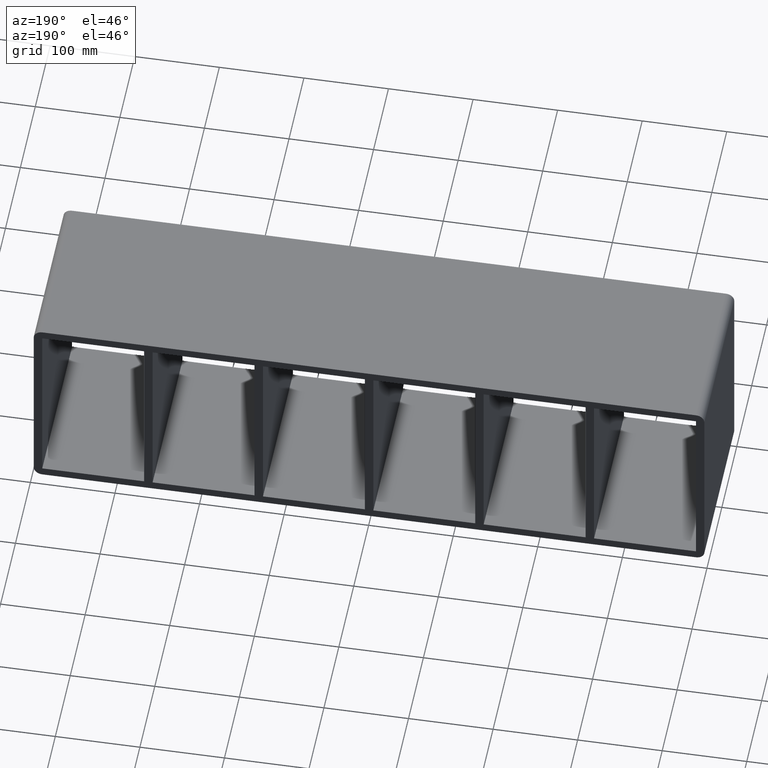
[diagram: clean part render]
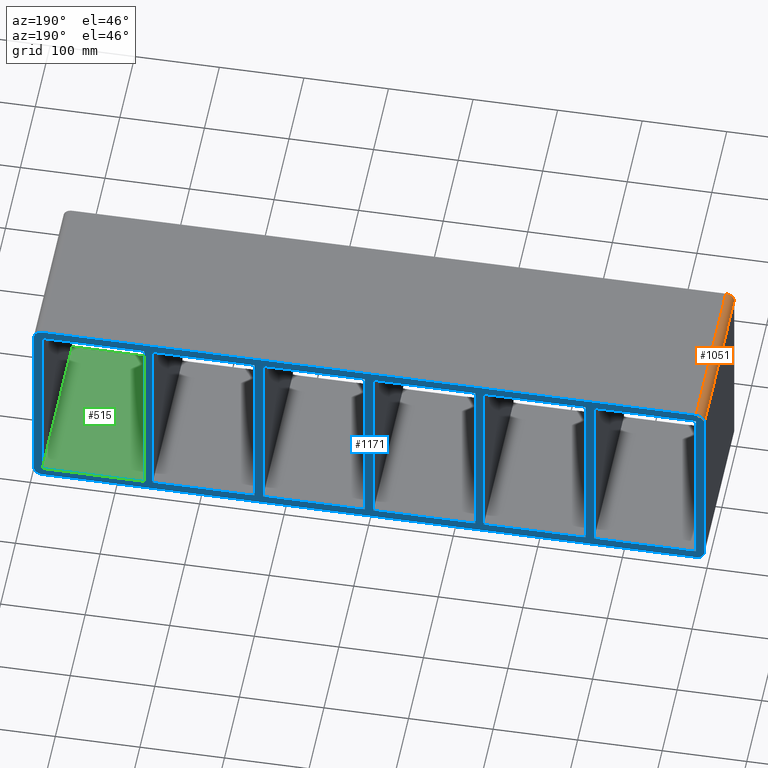
[diagram: same view with three faces highlighted in distinct colors, each labeled with its STEP entity id]
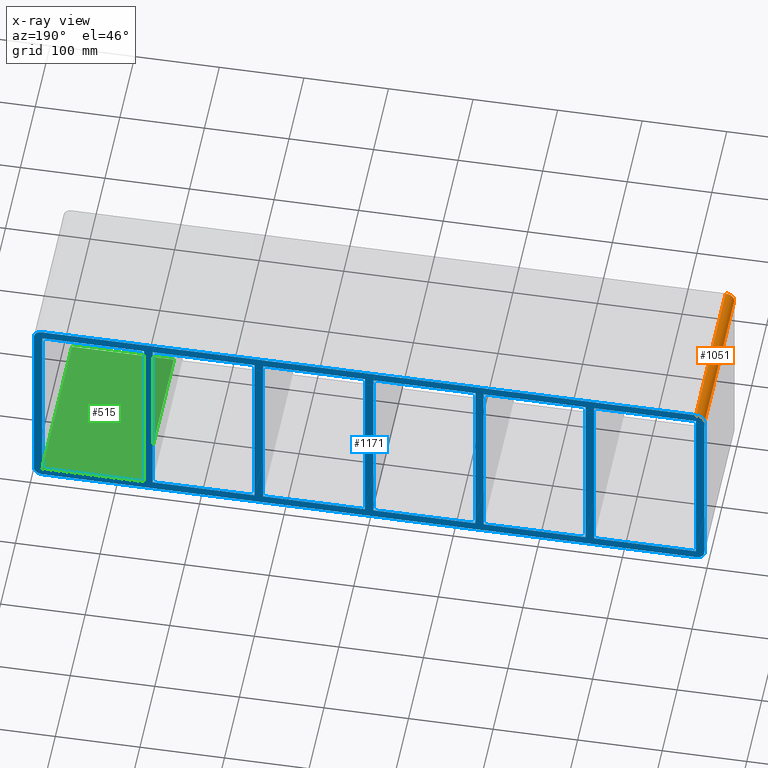
[diagram: x-ray of the same camera — body ghosted, the three highlighted faces saturated]
A machine part, auxiliary view with three faces highlighted in distinct colors.
The next image is the same camera in x-ray (body ghosted, the three faces saturated) — at least one of them is partly hidden behind the body in this view.
Their STEP definitions:

[orange] entity #1051 — the highlighted cylindrical surface (edge-blend (fillet) strip) has radius 10 mm, axis along (0, 1, 0).
#850=CARTESIAN_POINT('',(-386.50000000000006,-3.0,118.99999999999999));
#851=VERTEX_POINT('',#850);
#858=CARTESIAN_POINT('',(-396.50000000000006,-3.0,108.99999999999999));
#859=VERTEX_POINT('',#858);
#860=CARTESIAN_POINT('',(-386.50000000000006,-3.0,108.99999999999999));
#861=DIRECTION('',(0.0,1.0,0.0));
#862=DIRECTION('',(-0.707106781186547,0.0,0.707106781186547));
#863=AXIS2_PLACEMENT_3D('',#860,#861,#862);
#864=CIRCLE('',#863,9.999999999999998);
#865=EDGE_CURVE('',#859,#851,#864,.T.);
#1009=CARTESIAN_POINT('',(-386.50000000000006,197.0,118.99999999999999));
#1010=VERTEX_POINT('',#1009);
#1017=CARTESIAN_POINT('',(-386.50000000000006,-3.0,118.99999999999999));
#1018=DIRECTION('',(0.0,1.0,0.0));
#1019=VECTOR('',#1018,200.0);
#1020=LINE('',#1017,#1019);
#1021=EDGE_CURVE('',#851,#1010,#1020,.T.);
#1027=CARTESIAN_POINT('',(-386.50000000000006,0.0,108.99999999999999));
#1028=DIRECTION('',(0.0,1.0,0.0));
#1029=DIRECTION('',(-0.707106781186547,0.0,0.707106781186547));
#1030=AXIS2_PLACEMENT_3D('',#1027,#1028,#1029);
#1031=CYLINDRICAL_SURFACE('',#1030,10.0);
#1032=CARTESIAN_POINT('',(-396.50000000000006,197.0,108.99999999999999));
#1033=VERTEX_POINT('',#1032);
#1034=CARTESIAN_POINT('',(-386.50000000000006,197.0,108.99999999999999));
#1035=DIRECTION('',(0.0,-1.0,0.0));
#1036=DIRECTION('',(-0.707106781186547,0.0,0.707106781186547));
#1037=AXIS2_PLACEMENT_3D('',#1034,#1035,#1036);
#1038=CIRCLE('',#1037,9.999999999999998);
#1039=EDGE_CURVE('',#1010,#1033,#1038,.T.);
#1040=ORIENTED_EDGE('',*,*,#1039,.T.);
#1041=CARTESIAN_POINT('',(-396.50000000000006,197.0,108.99999999999999));
#1042=DIRECTION('',(0.0,-1.0,0.0));
#1043=VECTOR('',#1042,200.0);
#1044=LINE('',#1041,#1043);
#1045=EDGE_CURVE('',#1033,#859,#1044,.T.);
#1046=ORIENTED_EDGE('',*,*,#1045,.T.);
#1047=ORIENTED_EDGE('',*,*,#865,.T.);
#1048=ORIENTED_EDGE('',*,*,#1021,.T.);
#1049=EDGE_LOOP('',(#1040,#1046,#1047,#1048));
#1050=FACE_OUTER_BOUND('',#1049,.T.);
#1051=ADVANCED_FACE('',(#1050),#1031,.T.);

[blue] entity #1171 — the highlighted planar face has unit normal (0, 1, 0).
#83=CARTESIAN_POINT('',(255.99999999999878,197.0,108.99999999999997));
#84=VERTEX_POINT('',#83);
#91=CARTESIAN_POINT('',(255.99999999999883,197.0,-109.0));
#92=VERTEX_POINT('',#91);
#93=CARTESIAN_POINT('',(255.99999999999883,197.0,-109.0));
#94=DIRECTION('',(0.0,0.0,1.0));
#95=VECTOR('',#94,217.99999999999997);
#96=LINE('',#93,#95);
#97=EDGE_CURVE('',#92,#84,#96,.T.);
#123=CARTESIAN_POINT('',(266.00000000001461,197.0,-108.99999999997137));
#124=VERTEX_POINT('',#123);
#131=CARTESIAN_POINT('',(266.00000000001461,197.0,108.99999999999997));
#132=VERTEX_POINT('',#131);
#133=CARTESIAN_POINT('',(266.00000000001461,197.0,108.99999999999997));
#134=DIRECTION('',(0.0,0.0,-1.0));
#135=VECTOR('',#134,217.99999999997135);
#136=LINE('',#133,#135);
#137=EDGE_CURVE('',#132,#124,#136,.T.);
#163=CARTESIAN_POINT('',(125.49999999999876,197.0,108.99999999999997));
#164=VERTEX_POINT('',#163);
#171=CARTESIAN_POINT('',(125.49999999999883,197.0,-109.0));
#172=VERTEX_POINT('',#171);
#173=CARTESIAN_POINT('',(125.49999999999883,197.0,-109.0));
#174=DIRECTION('',(0.0,0.0,1.0));
#175=VECTOR('',#174,217.99999999999997);
#176=LINE('',#173,#175);
#177=EDGE_CURVE('',#172,#164,#176,.T.);
#203=CARTESIAN_POINT('',(135.50000000001461,197.0,-108.99999999997137));
#204=VERTEX_POINT('',#203);
#211=CARTESIAN_POINT('',(135.50000000001461,197.0,108.99999999999997));
#212=VERTEX_POINT('',#211);
#213=CARTESIAN_POINT('',(135.50000000001461,197.0,108.99999999999997));
#214=DIRECTION('',(0.0,0.0,-1.0));
#215=VECTOR('',#214,217.99999999997135);
#216=LINE('',#213,#215);
#217=EDGE_CURVE('',#212,#204,#216,.T.);
#243=CARTESIAN_POINT('',(-5.000000000001279,197.0,108.99999999999997));
#244=VERTEX_POINT('',#243);
#251=CARTESIAN_POINT('',(-5.000000000001208,197.0,-109.0));
#252=VERTEX_POINT('',#251);
#253=CARTESIAN_POINT('',(-5.000000000001208,197.0,-109.0));
#254=DIRECTION('',(0.0,0.0,1.0));
#255=VECTOR('',#254,217.99999999999997);
#256=LINE('',#253,#255);
#257=EDGE_CURVE('',#252,#244,#256,.T.);
#283=CARTESIAN_POINT('',(5.000000000014566,197.0,-108.99999999997137));
#284=VERTEX_POINT('',#283);
#291=CARTESIAN_POINT('',(5.000000000014566,197.0,108.99999999999997));
#292=VERTEX_POINT('',#291);
#293=CARTESIAN_POINT('',(5.000000000014566,197.0,108.99999999999997));
#294=DIRECTION('',(0.0,0.0,-1.0));
#295=VECTOR('',#294,217.99999999997135);
#296=LINE('',#293,#295);
#297=EDGE_CURVE('',#292,#284,#296,.T.);
#323=CARTESIAN_POINT('',(-135.50000000000128,197.0,108.99999999999997));
#324=VERTEX_POINT('',#323);
#331=CARTESIAN_POINT('',(-135.50000000000122,197.0,-109.0));
#332=VERTEX_POINT('',#331);
#333=CARTESIAN_POINT('',(-135.50000000000122,197.0,-109.0));
#334=DIRECTION('',(0.0,0.0,1.0));
#335=VECTOR('',#334,217.99999999999997);
#336=LINE('',#333,#335);
#337=EDGE_CURVE('',#332,#324,#336,.T.);
#363=CARTESIAN_POINT('',(-125.49999999998545,197.0,-108.99999999997137));
#364=VERTEX_POINT('',#363);
#371=CARTESIAN_POINT('',(-125.49999999998545,197.0,108.99999999999997));
#372=VERTEX_POINT('',#371);
#373=CARTESIAN_POINT('',(-125.49999999998545,197.0,108.99999999999997));
#374=DIRECTION('',(0.0,0.0,-1.0));
#375=VECTOR('',#374,217.99999999997135);
#376=LINE('',#373,#375);
#377=EDGE_CURVE('',#372,#364,#376,.T.);
#394=CARTESIAN_POINT('',(-255.99999999998545,197.0,-108.99999999997137));
#395=VERTEX_POINT('',#394);
#396=CARTESIAN_POINT('',(-255.99999999998542,197.0,-109.0));
#397=DIRECTION('',(1.0,0.0,0.0));
#398=VECTOR('',#397,120.4999999999842);
#399=LINE('',#396,#398);
#400=EDGE_CURVE('',#395,#332,#399,.T.);
#425=CARTESIAN_POINT('',(-125.49999999998542,197.0,-109.0));
#426=DIRECTION('',(1.0,0.0,0.0));
#427=VECTOR('',#426,120.4999999999842);
#428=LINE('',#425,#427);
#429=EDGE_CURVE('',#364,#252,#428,.T.);
#447=CARTESIAN_POINT('',(5.00000000001458,197.0,-109.0));
#448=DIRECTION('',(1.0,0.0,0.0));
#449=VECTOR('',#448,120.49999999998425);
#450=LINE('',#447,#449);
#451=EDGE_CURVE('',#284,#172,#450,.T.);
#469=CARTESIAN_POINT('',(135.50000000001461,197.0,-109.0));
#470=DIRECTION('',(1.0,0.0,0.0));
#471=VECTOR('',#470,120.49999999998423);
#472=LINE('',#469,#471);
#473=EDGE_CURVE('',#204,#92,#472,.T.);
#499=CARTESIAN_POINT('',(386.50000000000006,197.0,-109.0));
#500=VERTEX_POINT('',#499);
#507=CARTESIAN_POINT('',(266.00000000001461,197.0,-109.0));
#508=DIRECTION('',(1.0,0.0,0.0));
#509=VECTOR('',#508,120.49999999998545);
#510=LINE('',#507,#509);
#511=EDGE_CURVE('',#124,#500,#510,.T.);
#530=CARTESIAN_POINT('',(-255.99999999998545,197.0,108.99999999999997));
#531=VERTEX_POINT('',#530);
#538=CARTESIAN_POINT('',(-135.50000000000128,197.0,108.99999999999999));
#539=DIRECTION('',(-1.0,0.0,0.0));
#540=VECTOR('',#539,120.49999999998417);
#541=LINE('',#538,#540);
#542=EDGE_CURVE('',#324,#531,#541,.T.);
#560=CARTESIAN_POINT('',(-5.000000000001279,197.0,108.99999999999999));
#561=DIRECTION('',(-1.0,0.0,0.0));
#562=VECTOR('',#561,120.49999999998417);
#563=LINE('',#560,#562);
#564=EDGE_CURVE('',#244,#372,#563,.T.);
#582=CARTESIAN_POINT('',(125.49999999999878,197.0,108.99999999999999));
#583=DIRECTION('',(-1.0,0.0,0.0));
#584=VECTOR('',#583,120.4999999999842);
#585=LINE('',#582,#584);
#586=EDGE_CURVE('',#164,#292,#585,.T.);
#597=CARTESIAN_POINT('',(386.50000000000006,197.0,108.99999999999997));
#598=VERTEX_POINT('',#597);
#599=CARTESIAN_POINT('',(386.50000000000011,197.0,108.99999999999999));
#600=DIRECTION('',(-1.0,0.0,0.0));
#601=VECTOR('',#600,120.49999999998556);
#602=LINE('',#599,#601);
#603=EDGE_CURVE('',#598,#132,#602,.T.);
#635=CARTESIAN_POINT('',(255.99999999999883,197.0,108.99999999999999));
#636=DIRECTION('',(-1.0,0.0,0.0));
#637=VECTOR('',#636,120.4999999999842);
#638=LINE('',#635,#637);
#639=EDGE_CURVE('',#84,#212,#638,.T.);
#659=CARTESIAN_POINT('',(-266.00000000000131,197.0,108.99999999999997));
#660=VERTEX_POINT('',#659);
#667=CARTESIAN_POINT('',(-266.00000000000125,197.0,-109.0));
#668=VERTEX_POINT('',#667);
#669=CARTESIAN_POINT('',(-266.00000000000125,197.0,-109.0));
#670=DIRECTION('',(0.0,0.0,1.0));
#671=VECTOR('',#670,217.99999999999997);
#672=LINE('',#669,#671);
#673=EDGE_CURVE('',#668,#660,#672,.T.);
#696=CARTESIAN_POINT('',(-255.99999999998545,197.0,108.99999999999997));
#697=DIRECTION('',(0.0,0.0,-1.0));
#698=VECTOR('',#697,217.99999999997135);
#699=LINE('',#696,#698);
#700=EDGE_CURVE('',#531,#395,#699,.T.);
#712=CARTESIAN_POINT('',(-386.50000000000006,197.0,-109.0));
#713=VERTEX_POINT('',#712);
#714=CARTESIAN_POINT('',(-386.50000000000011,197.0,-109.0));
#715=DIRECTION('',(1.0,0.0,0.0));
#716=VECTOR('',#715,120.49999999999886);
#717=LINE('',#714,#716);
#718=EDGE_CURVE('',#713,#668,#717,.T.);
#751=CARTESIAN_POINT('',(-386.50000000000006,197.0,108.99999999999997));
#752=VERTEX_POINT('',#751);
#759=CARTESIAN_POINT('',(-266.00000000000131,197.0,108.99999999999999));
#760=DIRECTION('',(-1.0,0.0,0.0));
#761=VECTOR('',#760,120.49999999999875);
#762=LINE('',#759,#761);
#763=EDGE_CURVE('',#660,#752,#762,.T.);
#773=CARTESIAN_POINT('',(-396.50000000000006,197.0,-109.00000000000003));
#774=VERTEX_POINT('',#773);
#775=CARTESIAN_POINT('',(-386.50000000000006,197.0,-119.00000000000003));
#776=VERTEX_POINT('',#775);
#777=CARTESIAN_POINT('',(-386.50000000000006,197.0,-109.00000000000003));
#778=DIRECTION('',(0.0,-1.0,0.0));
#779=DIRECTION('',(-0.707106781186547,0.0,-0.707106781186547));
#780=AXIS2_PLACEMENT_3D('',#777,#778,#779);
#781=CIRCLE('',#780,9.999999999999998);
#782=EDGE_CURVE('',#774,#776,#781,.T.);
#928=CARTESIAN_POINT('',(386.50000000000006,197.0,-119.00000000000003));
#929=VERTEX_POINT('',#928);
#930=CARTESIAN_POINT('',(386.50000000000006,197.0,-119.00000000000003));
#931=DIRECTION('',(-1.0,0.0,0.0));
#932=VECTOR('',#931,773.00000000000011);
#933=LINE('',#930,#932);
#934=EDGE_CURVE('',#929,#776,#933,.T.);
#951=CARTESIAN_POINT('',(396.50000000000006,197.0,-109.00000000000003));
#952=VERTEX_POINT('',#951);
#953=CARTESIAN_POINT('',(386.50000000000006,197.0,-109.00000000000003));
#954=DIRECTION('',(0.0,-1.0,0.0));
#955=DIRECTION('',(0.707106781186547,0.0,-0.707106781186547));
#956=AXIS2_PLACEMENT_3D('',#953,#954,#955);
#957=CIRCLE('',#956,9.999999999999998);
#958=EDGE_CURVE('',#929,#952,#957,.T.);
#977=CARTESIAN_POINT('',(396.50000000000006,197.0,108.99999999999999));
#978=VERTEX_POINT('',#977);
#985=CARTESIAN_POINT('',(386.50000000000006,197.0,118.99999999999999));
#986=VERTEX_POINT('',#985);
#987=CARTESIAN_POINT('',(386.50000000000006,197.0,108.99999999999999));
#988=DIRECTION('',(0.0,-1.0,0.0));
#989=DIRECTION('',(0.707106781186547,0.0,0.707106781186547));
#990=AXIS2_PLACEMENT_3D('',#987,#988,#989);
#991=CIRCLE('',#990,9.999999999999998);
#992=EDGE_CURVE('',#978,#986,#991,.T.);
#1009=CARTESIAN_POINT('',(-386.50000000000006,197.0,118.99999999999999));
#1010=VERTEX_POINT('',#1009);
#1011=CARTESIAN_POINT('',(-386.50000000000006,197.0,118.99999999999999));
#1012=DIRECTION('',(1.0,0.0,0.0));
#1013=VECTOR('',#1012,773.00000000000011);
#1014=LINE('',#1011,#1013);
#1015=EDGE_CURVE('',#1010,#986,#1014,.T.);
#1032=CARTESIAN_POINT('',(-396.50000000000006,197.0,108.99999999999999));
#1033=VERTEX_POINT('',#1032);
#1034=CARTESIAN_POINT('',(-386.50000000000006,197.0,108.99999999999999));
#1035=DIRECTION('',(0.0,-1.0,0.0));
#1036=DIRECTION('',(-0.707106781186547,0.0,0.707106781186547));
#1037=AXIS2_PLACEMENT_3D('',#1034,#1035,#1036);
#1038=CIRCLE('',#1037,9.999999999999998);
#1039=EDGE_CURVE('',#1010,#1033,#1038,.T.);
#1060=CARTESIAN_POINT('',(386.50000000000006,197.0,-108.99999999999999));
#1061=DIRECTION('',(0.0,0.0,1.0));
#1062=VECTOR('',#1061,217.99999999999994);
#1063=LINE('',#1060,#1062);
#1064=EDGE_CURVE('',#500,#598,#1063,.T.);
#1077=CARTESIAN_POINT('',(-386.50000000000006,197.0,108.99999999999996));
#1078=DIRECTION('',(0.0,0.0,-1.0));
#1079=VECTOR('',#1078,217.99999999999994);
#1080=LINE('',#1077,#1079);
#1081=EDGE_CURVE('',#752,#713,#1080,.T.);
#1094=CARTESIAN_POINT('',(-396.50000000000006,197.0,-109.00000000000003));
#1095=DIRECTION('',(0.0,0.0,1.0));
#1096=VECTOR('',#1095,218.0);
#1097=LINE('',#1094,#1096);
#1098=EDGE_CURVE('',#774,#1033,#1097,.T.);
#1109=CARTESIAN_POINT('',(396.50000000000006,197.0,108.99999999999999));
#1110=DIRECTION('',(0.0,0.0,-1.0));
#1111=VECTOR('',#1110,218.0);
#1112=LINE('',#1109,#1111);
#1113=EDGE_CURVE('',#978,#952,#1112,.T.);
#1120=CARTESIAN_POINT('',(0.0,197.0,-1.654028E-014));
#1121=DIRECTION('',(0.0,1.0,0.0));
#1122=DIRECTION('',(0.0,0.0,1.0));
#1123=AXIS2_PLACEMENT_3D('',#1120,#1121,#1122);
#1124=PLANE('',#1123);
#1125=ORIENTED_EDGE('',*,*,#782,.F.);
#1126=ORIENTED_EDGE('',*,*,#1098,.T.);
#1127=ORIENTED_EDGE('',*,*,#1039,.F.);
#1128=ORIENTED_EDGE('',*,*,#1015,.T.);
#1129=ORIENTED_EDGE('',*,*,#992,.F.);
#1130=ORIENTED_EDGE('',*,*,#1113,.T.);
#1131=ORIENTED_EDGE('',*,*,#958,.F.);
#1132=ORIENTED_EDGE('',*,*,#934,.T.);
#1133=EDGE_LOOP('',(#1125,#1126,#1127,#1128,#1129,#1130,#1131,#1132));
#1134=FACE_OUTER_BOUND('',#1133,.T.);
#1135=ORIENTED_EDGE('',*,*,#511,.T.);
#1136=ORIENTED_EDGE('',*,*,#1064,.T.);
#1137=ORIENTED_EDGE('',*,*,#603,.T.);
#1138=ORIENTED_EDGE('',*,*,#137,.T.);
#1139=EDGE_LOOP('',(#1135,#1136,#1137,#1138));
#1140=FACE_BOUND('',#1139,.T.);
#1141=ORIENTED_EDGE('',*,*,#97,.T.);
#1142=ORIENTED_EDGE('',*,*,#639,.T.);
#1143=ORIENTED_EDGE('',*,*,#217,.T.);
#1144=ORIENTED_EDGE('',*,*,#473,.T.);
#1145=EDGE_LOOP('',(#1141,#1142,#1143,#1144));
#1146=FACE_BOUND('',#1145,.T.);
#1147=ORIENTED_EDGE('',*,*,#177,.T.);
#1148=ORIENTED_EDGE('',*,*,#586,.T.);
#1149=ORIENTED_EDGE('',*,*,#297,.T.);
#1150=ORIENTED_EDGE('',*,*,#451,.T.);
#1151=EDGE_LOOP('',(#1147,#1148,#1149,#1150));
#1152=FACE_BOUND('',#1151,.T.);
#1153=ORIENTED_EDGE('',*,*,#257,.T.);
#1154=ORIENTED_EDGE('',*,*,#564,.T.);
#1155=ORIENTED_EDGE('',*,*,#377,.T.);
#1156=ORIENTED_EDGE('',*,*,#429,.T.);
#1157=EDGE_LOOP('',(#1153,#1154,#1155,#1156));
#1158=FACE_BOUND('',#1157,.T.);
#1159=ORIENTED_EDGE('',*,*,#337,.T.);
#1160=ORIENTED_EDGE('',*,*,#542,.T.);
#1161=ORIENTED_EDGE('',*,*,#700,.T.);
#1162=ORIENTED_EDGE('',*,*,#400,.T.);
#1163=EDGE_LOOP('',(#1159,#1160,#1161,#1162));
#1164=FACE_BOUND('',#1163,.T.);
#1165=ORIENTED_EDGE('',*,*,#673,.T.);
#1166=ORIENTED_EDGE('',*,*,#763,.T.);
#1167=ORIENTED_EDGE('',*,*,#1081,.T.);
#1168=ORIENTED_EDGE('',*,*,#718,.T.);
#1169=EDGE_LOOP('',(#1165,#1166,#1167,#1168));
#1170=FACE_BOUND('',#1169,.T.);
#1171=ADVANCED_FACE('',(#1134,#1140,#1146,#1152,#1158,#1164,#1170),#1124,.T.);

[green] entity #515 — the highlighted planar face has unit normal (0, 0, -1).
#115=CARTESIAN_POINT('',(266.00000000001461,-3.0,-108.99999999997137));
#116=VERTEX_POINT('',#115);
#123=CARTESIAN_POINT('',(266.00000000001461,197.0,-108.99999999997137));
#124=VERTEX_POINT('',#123);
#125=CARTESIAN_POINT('',(266.00000000001455,196.99999999999997,-109.0));
#126=DIRECTION('',(0.0,-1.0,0.0));
#127=VECTOR('',#126,199.99999999999997);
#128=LINE('',#125,#127);
#129=EDGE_CURVE('',#124,#116,#128,.T.);
#485=CARTESIAN_POINT('',(386.50000000000006,0.0,-109.0));
#486=DIRECTION('',(0.0,0.0,-1.0));
#487=DIRECTION('',(-1.0,0.0,0.0));
#488=AXIS2_PLACEMENT_3D('',#485,#486,#487);
#489=PLANE('',#488);
#490=ORIENTED_EDGE('',*,*,#129,.T.);
#491=CARTESIAN_POINT('',(386.50000000000006,-3.0,-109.0));
#492=VERTEX_POINT('',#491);
#493=CARTESIAN_POINT('',(386.50000000000006,-3.0,-109.0));
#494=DIRECTION('',(-1.0,0.0,0.0));
#495=VECTOR('',#494,120.49999999998545);
#496=LINE('',#493,#495);
#497=EDGE_CURVE('',#492,#116,#496,.T.);
#498=ORIENTED_EDGE('',*,*,#497,.F.);
#499=CARTESIAN_POINT('',(386.50000000000006,197.0,-109.0));
#500=VERTEX_POINT('',#499);
#501=CARTESIAN_POINT('',(386.50000000000006,197.0,-109.0));
#502=DIRECTION('',(0.0,-1.0,0.0));
#503=VECTOR('',#502,200.0);
#504=LINE('',#501,#503);
#505=EDGE_CURVE('',#500,#492,#504,.T.);
#506=ORIENTED_EDGE('',*,*,#505,.F.);
#507=CARTESIAN_POINT('',(266.00000000001461,197.0,-109.0));
#508=DIRECTION('',(1.0,0.0,0.0));
#509=VECTOR('',#508,120.49999999998545);
#510=LINE('',#507,#509);
#511=EDGE_CURVE('',#124,#500,#510,.T.);
#512=ORIENTED_EDGE('',*,*,#511,.F.);
#513=EDGE_LOOP('',(#490,#498,#506,#512));
#514=FACE_OUTER_BOUND('',#513,.T.);
#515=ADVANCED_FACE('',(#514),#489,.F.);